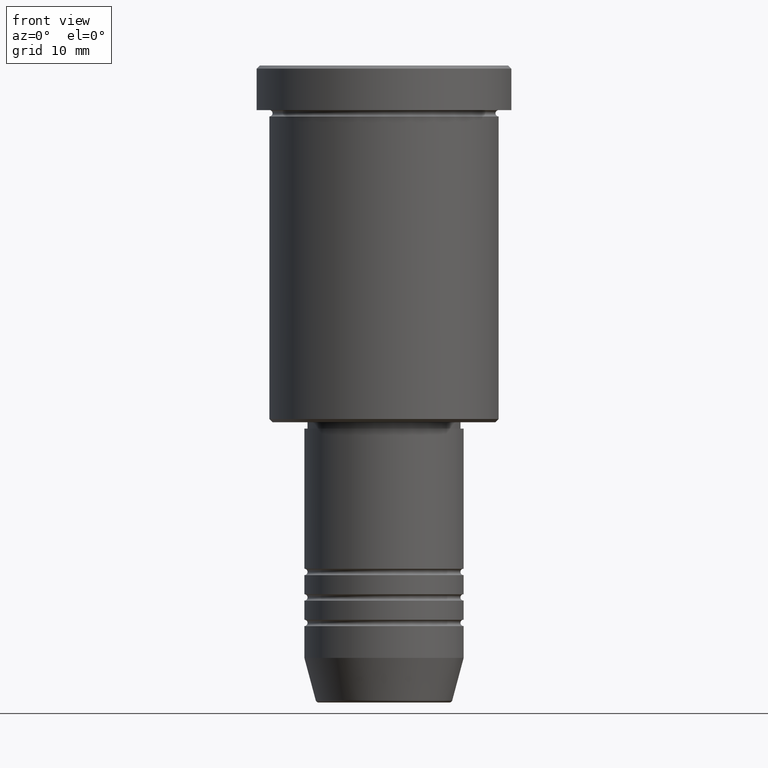
[diagram: clean part render]
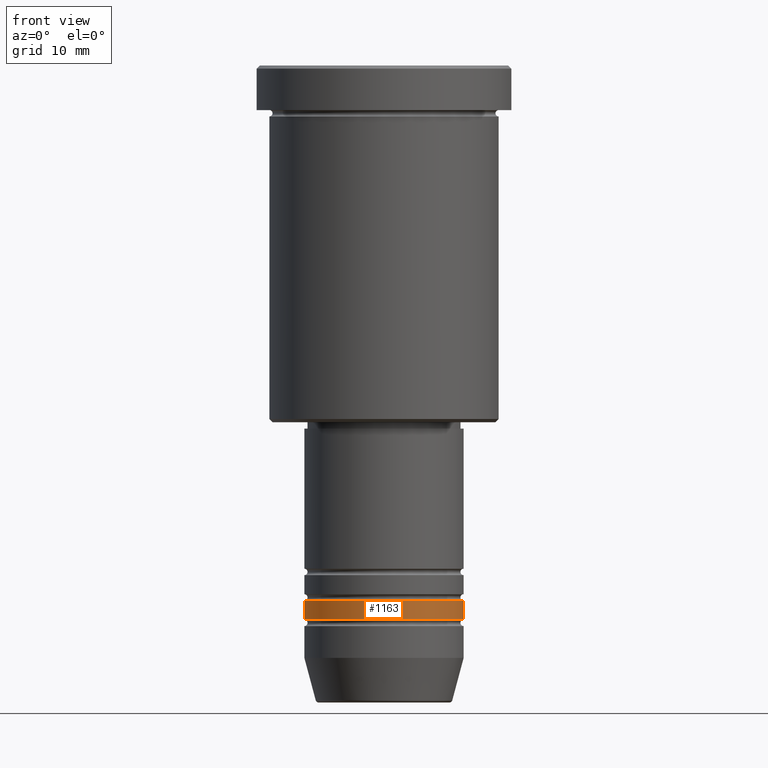
[diagram: same view with one face highlighted and labeled with its STEP entity id]
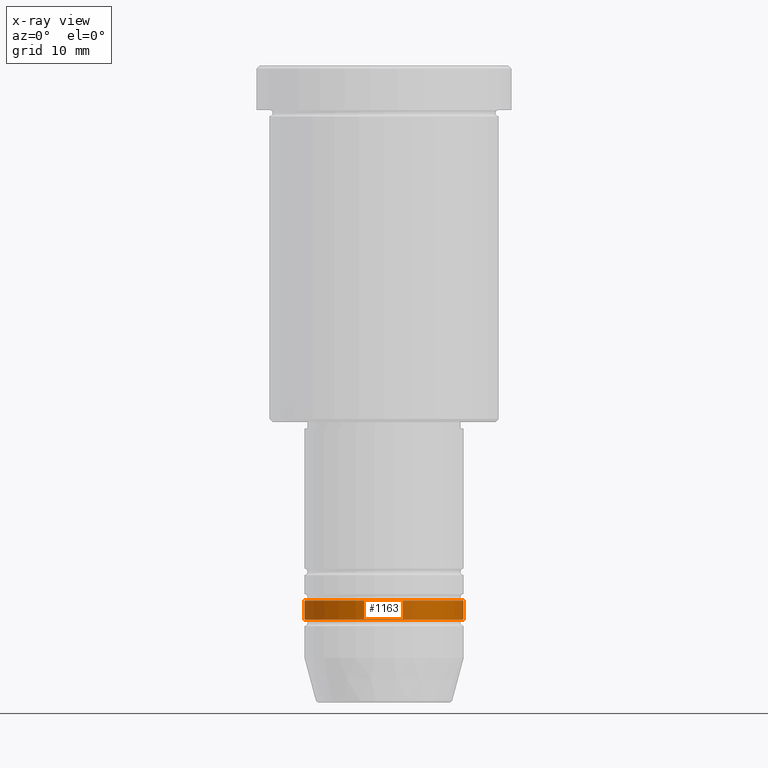
[diagram: x-ray of the same camera — body ghosted, the highlighted face saturated]
A machine part, front view. The second image highlights one B-rep face of the part: STEP entity #1163.
The next image is the same camera in x-ray: the body ghosted, the highlighted face saturated — about 0% of this face is hidden behind the body in this view.
In plain terms, the highlighted cylindrical surface (partial cylindrical patch) has radius 12.5 mm, axis along (-0, -0, 1).
Its self-contained STEP definition (entity closure, byte-faithful):
#9 = LINE ( 'NONE', #554, #479 ) ;
#54 = VERTEX_POINT ( 'NONE', #1000 ) ;
#94 = CARTESIAN_POINT ( 'NONE',  ( 0.000000000000000000, 0.000000000000000000, 0.000000000000000000 ) ) ;
#187 = CARTESIAN_POINT ( 'NONE',  ( 0.000000000000000000, 0.000000000000000000, -86.99999999999998579 ) ) ;
#193 = DIRECTION ( 'NONE',  ( -0.000000000000000000, -0.000000000000000000, 1.000000000000000000 ) ) ;
#235 = DIRECTION ( 'NONE',  ( 1.000000000000000000, 0.000000000000000000, 0.000000000000000000 ) ) ;
#243 = AXIS2_PLACEMENT_3D ( 'NONE', #94, #739, #1111 ) ;
#380 = FACE_OUTER_BOUND ( 'NONE', #768, .T. ) ;
#391 = AXIS2_PLACEMENT_3D ( 'NONE', #187, #912, #924 ) ;
#392 = CIRCLE ( 'NONE', #1063, 12.50000000000000000 ) ;
#397 = VERTEX_POINT ( 'NONE', #663 ) ;
#416 = EDGE_CURVE ( 'NONE', #397, #437, #392, .T. ) ;
#423 = EDGE_CURVE ( 'NONE', #54, #437, #898, .T. ) ;
#437 = VERTEX_POINT ( 'NONE', #539 ) ;
#479 = VECTOR ( 'NONE', #653, 1000.000000000000000 ) ;
#482 = VECTOR ( 'NONE', #193, 1000.000000000000000 ) ;
#539 = CARTESIAN_POINT ( 'NONE',  ( 12.50000000000000000, 0.000000000000000000, -83.99999999999998579 ) ) ;
#554 = CARTESIAN_POINT ( 'NONE',  ( -12.50000000000000000, 1.530808498934191521E-15, 0.000000000000000000 ) ) ;
#555 = VERTEX_POINT ( 'NONE', #615 ) ;
#582 = ORIENTED_EDGE ( 'NONE', *, *, #973, .F. ) ;
#615 = CARTESIAN_POINT ( 'NONE',  ( -12.50000000000000000, 1.530808498934191521E-15, -86.99999999999998579 ) ) ;
#638 = CYLINDRICAL_SURFACE ( 'NONE', #243, 12.50000000000000000 ) ;
#653 = DIRECTION ( 'NONE',  ( -0.000000000000000000, -0.000000000000000000, 1.000000000000000000 ) ) ;
#663 = CARTESIAN_POINT ( 'NONE',  ( -12.50000000000000000, 1.530808498934191521E-15, -83.99999999999998579 ) ) ;
#739 = DIRECTION ( 'NONE',  ( -0.000000000000000000, -0.000000000000000000, 1.000000000000000000 ) ) ;
#768 = EDGE_LOOP ( 'NONE', ( #582, #1107, #1073, #823 ) ) ;
#775 = DIRECTION ( 'NONE',  ( -0.000000000000000000, -0.000000000000000000, 1.000000000000000000 ) ) ;
#823 = ORIENTED_EDGE ( 'NONE', *, *, #416, .F. ) ;
#898 = LINE ( 'NONE', #1009, #482 ) ;
#912 = DIRECTION ( 'NONE',  ( -0.000000000000000000, -0.000000000000000000, 1.000000000000000000 ) ) ;
#922 = CIRCLE ( 'NONE', #391, 12.50000000000000000 ) ;
#924 = DIRECTION ( 'NONE',  ( 1.000000000000000000, 0.000000000000000000, 0.000000000000000000 ) ) ;
#955 = EDGE_CURVE ( 'NONE', #555, #54, #922, .T. ) ;
#973 = EDGE_CURVE ( 'NONE', #555, #397, #9, .T. ) ;
#1000 = CARTESIAN_POINT ( 'NONE',  ( 12.50000000000000000, 0.000000000000000000, -86.99999999999998579 ) ) ;
#1009 = CARTESIAN_POINT ( 'NONE',  ( 12.50000000000000000, 0.000000000000000000, 0.000000000000000000 ) ) ;
#1063 = AXIS2_PLACEMENT_3D ( 'NONE', #1074, #775, #235 ) ;
#1073 = ORIENTED_EDGE ( 'NONE', *, *, #423, .T. ) ;
#1074 = CARTESIAN_POINT ( 'NONE',  ( 0.000000000000000000, 0.000000000000000000, -83.99999999999998579 ) ) ;
#1107 = ORIENTED_EDGE ( 'NONE', *, *, #955, .T. ) ;
#1111 = DIRECTION ( 'NONE',  ( 1.000000000000000000, 0.000000000000000000, 0.000000000000000000 ) ) ;
#1163 = ADVANCED_FACE ( 'NONE', ( #380 ), #638, .T. ) ;